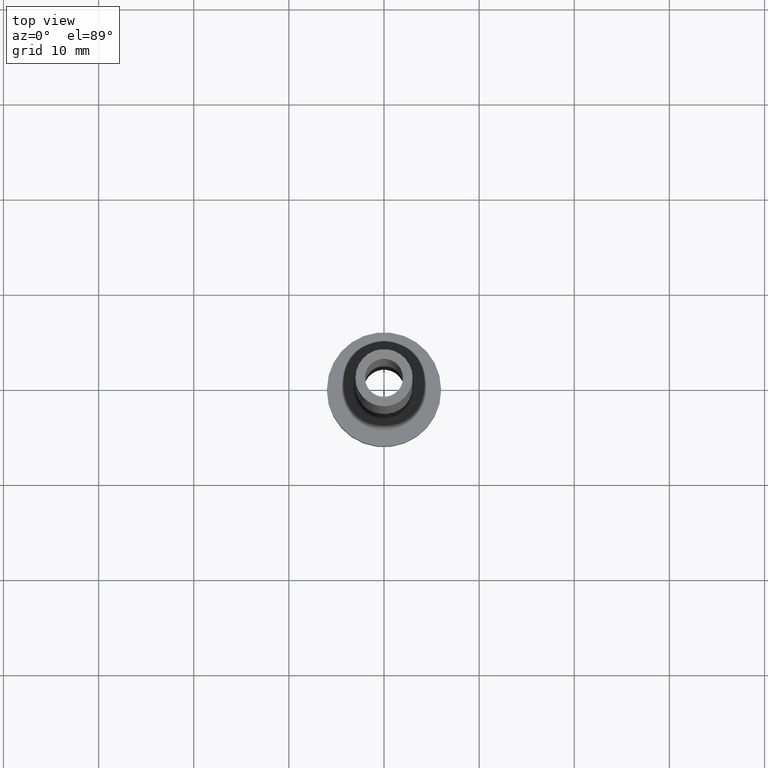
[diagram: clean part render]
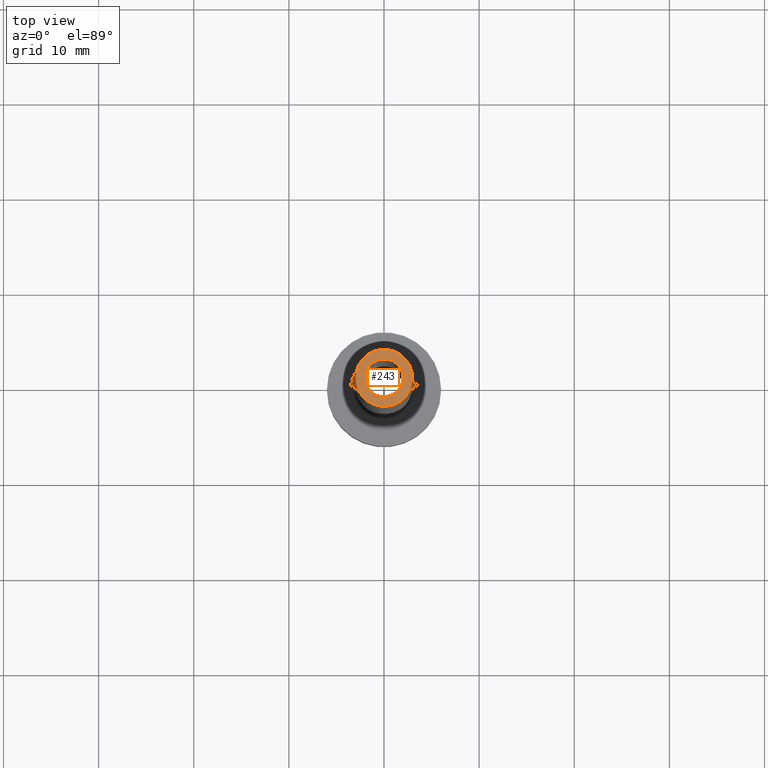
[diagram: same view with one face highlighted and labeled with its STEP entity id]
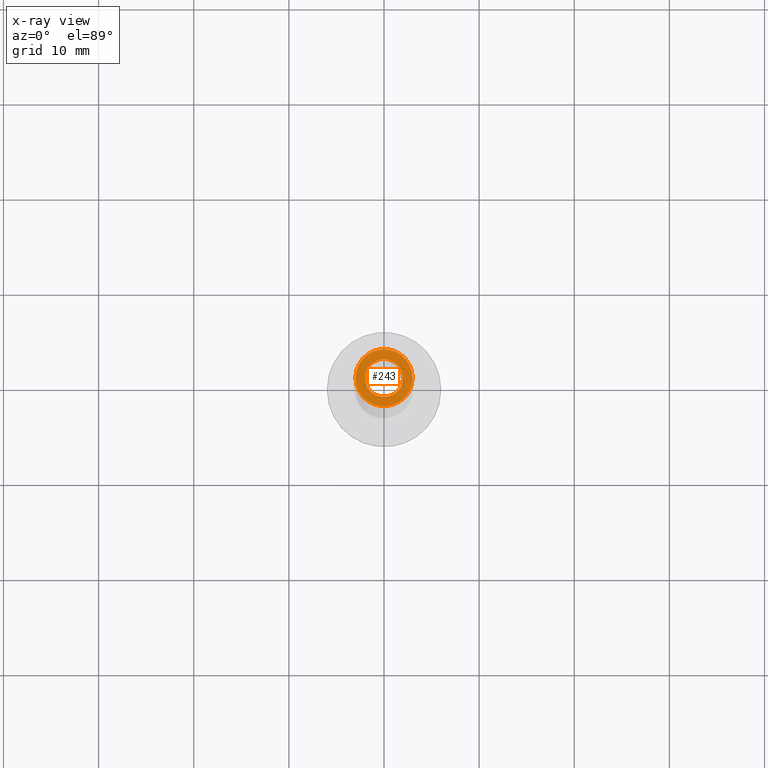
[diagram: x-ray of the same camera — body ghosted, the highlighted face saturated]
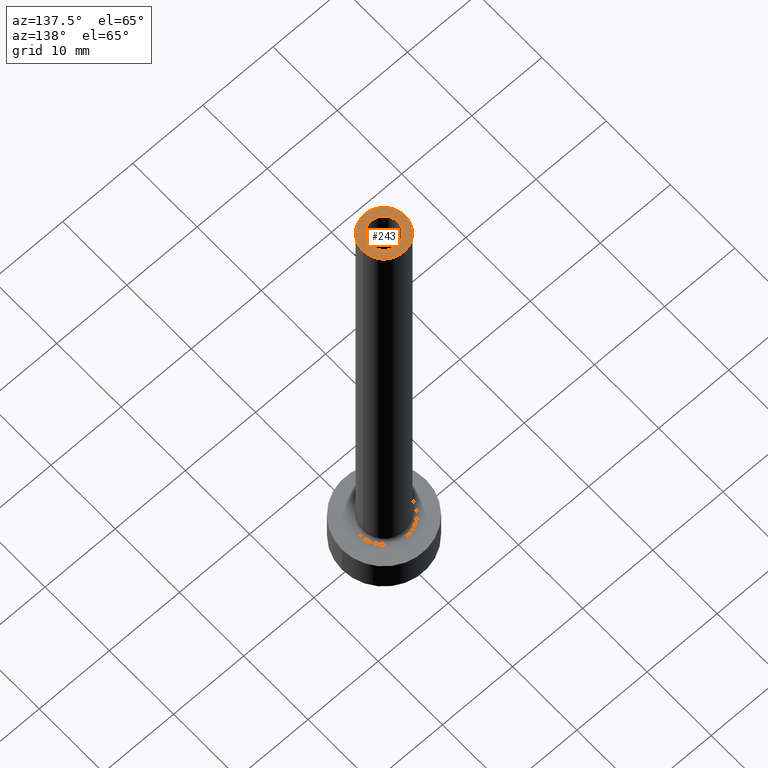
[diagram: same view with one face highlighted and labeled with its STEP entity id]
A machine part, top view. The second image highlights one B-rep face of the part: STEP entity #243.
The next image is the same camera in x-ray: the body ghosted, the highlighted face saturated — about 0% of this face is hidden behind the body in this view.
A second angle (auxiliary view) of the same face is appended — the face is thin or edge-on in the first view.
In plain terms, the highlighted planar face has unit normal (0, 0, 1).
Its self-contained STEP definition (entity closure, byte-faithful):
#3 = EDGE_LOOP ( 'NONE', ( #11, #321 ) ) ;
#6 = EDGE_CURVE ( 'NONE', #357, #345, #346, .T. ) ;
#7 = FACE_OUTER_BOUND ( 'NONE', #389, .T. ) ;
#11 = ORIENTED_EDGE ( 'NONE', *, *, #145, .F. ) ;
#17 = DIRECTION ( 'NONE',  ( 0.000000000000000000, 0.000000000000000000, 1.000000000000000000 ) ) ;
#26 = AXIS2_PLACEMENT_3D ( 'NONE', #125, #119, #201 ) ;
#36 = DIRECTION ( 'NONE',  ( 1.000000000000000000, 0.000000000000000000, -0.000000000000000000 ) ) ;
#55 = CARTESIAN_POINT ( 'NONE',  ( -2.000000000000000000, 0.000000000000000000, 75.00000000000001421 ) ) ;
#111 = DIRECTION ( 'NONE',  ( 1.000000000000000000, 0.000000000000000000, 0.000000000000000000 ) ) ;
#113 = FACE_BOUND ( 'NONE', #3, .T. ) ;
#116 = VERTEX_POINT ( 'NONE', #134 ) ;
#119 = DIRECTION ( 'NONE',  ( 0.000000000000000000, 0.000000000000000000, 1.000000000000000000 ) ) ;
#125 = CARTESIAN_POINT ( 'NONE',  ( 0.000000000000000000, 0.000000000000000000, 75.00000000000001421 ) ) ;
#131 = AXIS2_PLACEMENT_3D ( 'NONE', #217, #17, #36 ) ;
#134 = CARTESIAN_POINT ( 'NONE',  ( -3.000000000000000444, 0.000000000000000000, 75.00000000000001421 ) ) ;
#137 = EDGE_CURVE ( 'NONE', #116, #447, #222, .T. ) ;
#145 = EDGE_CURVE ( 'NONE', #345, #357, #278, .T. ) ;
#148 = DIRECTION ( 'NONE',  ( 0.000000000000000000, 0.000000000000000000, 1.000000000000000000 ) ) ;
#153 = CARTESIAN_POINT ( 'NONE',  ( 0.000000000000000000, 0.000000000000000000, 75.00000000000001421 ) ) ;
#193 = AXIS2_PLACEMENT_3D ( 'NONE', #248, #148, #316 ) ;
#201 = DIRECTION ( 'NONE',  ( 1.000000000000000000, 0.000000000000000000, 0.000000000000000000 ) ) ;
#204 = ORIENTED_EDGE ( 'NONE', *, *, #137, .T. ) ;
#217 = CARTESIAN_POINT ( 'NONE',  ( 0.000000000000000000, 0.000000000000000000, 75.00000000000001421 ) ) ;
#220 = EDGE_CURVE ( 'NONE', #447, #116, #434, .T. ) ;
#222 = CIRCLE ( 'NONE', #193, 3.000000000000000444 ) ;
#242 = AXIS2_PLACEMENT_3D ( 'NONE', #326, #355, #111 ) ;
#243 = ADVANCED_FACE ( 'NONE', ( #113, #7 ), #323, .T. ) ;
#248 = CARTESIAN_POINT ( 'NONE',  ( 0.000000000000000000, 0.000000000000000000, 75.00000000000001421 ) ) ;
#249 = ORIENTED_EDGE ( 'NONE', *, *, #220, .T. ) ;
#278 = CIRCLE ( 'NONE', #293, 2.000000000000000000 ) ;
#293 = AXIS2_PLACEMENT_3D ( 'NONE', #153, #329, #295 ) ;
#295 = DIRECTION ( 'NONE',  ( 1.000000000000000000, 0.000000000000000000, 0.000000000000000000 ) ) ;
#316 = DIRECTION ( 'NONE',  ( 1.000000000000000000, 0.000000000000000000, 0.000000000000000000 ) ) ;
#321 = ORIENTED_EDGE ( 'NONE', *, *, #6, .F. ) ;
#323 = PLANE ( 'NONE',  #131 ) ;
#326 = CARTESIAN_POINT ( 'NONE',  ( 0.000000000000000000, 0.000000000000000000, 75.00000000000001421 ) ) ;
#329 = DIRECTION ( 'NONE',  ( 0.000000000000000000, 0.000000000000000000, 1.000000000000000000 ) ) ;
#345 = VERTEX_POINT ( 'NONE', #55 ) ;
#346 = CIRCLE ( 'NONE', #26, 2.000000000000000000 ) ;
#348 = CARTESIAN_POINT ( 'NONE',  ( 2.000000000000000000, 2.449293598294705921E-16, 75.00000000000001421 ) ) ;
#355 = DIRECTION ( 'NONE',  ( 0.000000000000000000, 0.000000000000000000, 1.000000000000000000 ) ) ;
#357 = VERTEX_POINT ( 'NONE', #348 ) ;
#389 = EDGE_LOOP ( 'NONE', ( #204, #249 ) ) ;
#434 = CIRCLE ( 'NONE', #242, 3.000000000000000444 ) ;
#445 = CARTESIAN_POINT ( 'NONE',  ( 3.000000000000000444, 3.673940397442060361E-16, 75.00000000000001421 ) ) ;
#447 = VERTEX_POINT ( 'NONE', #445 ) ;